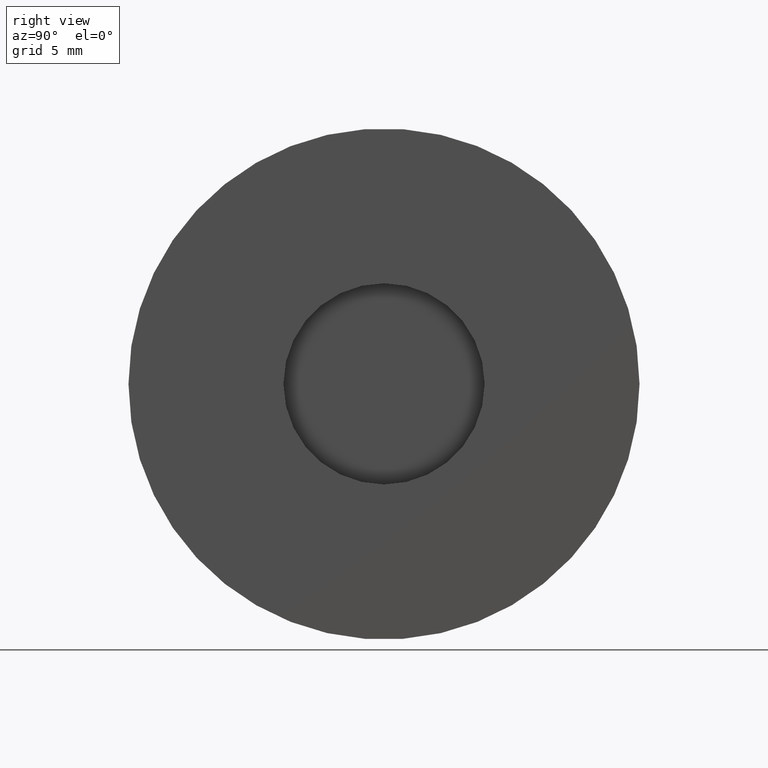
[diagram: clean part render]
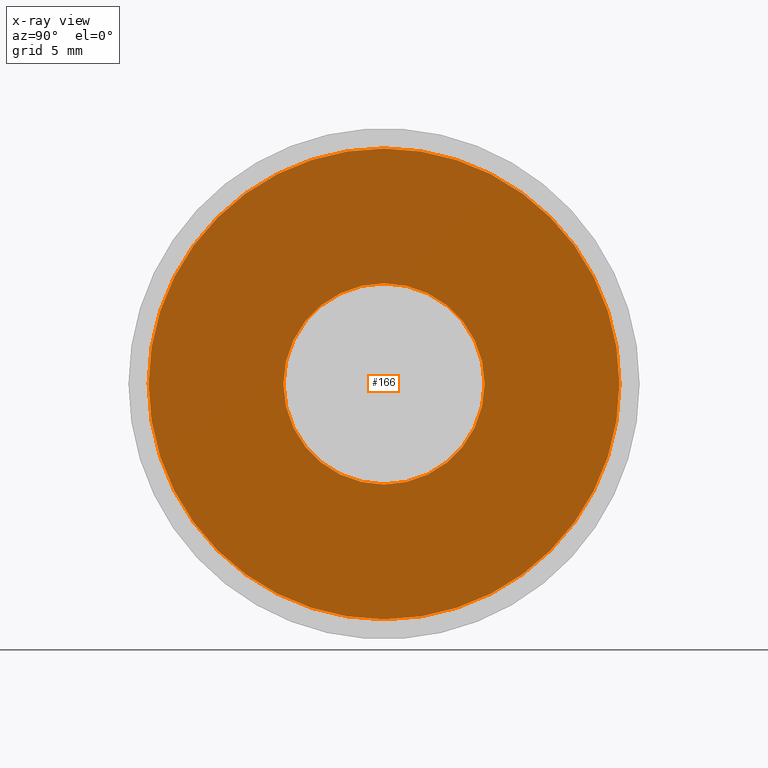
[diagram: x-ray — body ghosted, one internal face saturated and labeled with its STEP entity id]
A machine part, right view, then the same camera in x-ray: the body is ghosted and one INTERNAL B-rep face — a face not visible from any outside direction — is saturated and labeled: STEP entity #166.
In plain terms, the highlighted planar face has unit normal (1, 0, 0).
Its self-contained STEP definition (entity closure, byte-faithful):
#9 = EDGE_CURVE ( 'NONE', #274, #291, #112, .T. ) ;
#21 = EDGE_CURVE ( 'NONE', #326, #593, #375, .T. ) ;
#26 = CIRCLE ( 'NONE', #343, 5.000000000000000000 ) ;
#33 = DIRECTION ( 'NONE',  ( 1.000000000000000000, 0.000000000000000000, 0.000000000000000000 ) ) ;
#63 = AXIS2_PLACEMENT_3D ( 'NONE', #236, #33, #145 ) ;
#69 = DIRECTION ( 'NONE',  ( 1.000000000000000000, 0.000000000000000000, 0.000000000000000000 ) ) ;
#79 = AXIS2_PLACEMENT_3D ( 'NONE', #446, #563, #568 ) ;
#112 = CIRCLE ( 'NONE', #193, 11.70000000000000107 ) ;
#129 = DIRECTION ( 'NONE',  ( 1.000000000000000000, 0.000000000000000000, 0.000000000000000000 ) ) ;
#135 = ORIENTED_EDGE ( 'NONE', *, *, #21, .F. ) ;
#142 = CIRCLE ( 'NONE', #79, 11.70000000000000107 ) ;
#145 = DIRECTION ( 'NONE',  ( 0.000000000000000000, 1.000000000000000000, 0.000000000000000000 ) ) ;
#151 = ORIENTED_EDGE ( 'NONE', *, *, #9, .T. ) ;
#166 = ADVANCED_FACE ( 'NONE', ( #190, #660 ), #615, .T. ) ;
#190 = FACE_BOUND ( 'NONE', #585, .T. ) ;
#193 = AXIS2_PLACEMENT_3D ( 'NONE', #449, #129, #440 ) ;
#205 = CARTESIAN_POINT ( 'NONE',  ( -1.449999999999999956, 0.000000000000000000, 0.000000000000000000 ) ) ;
#236 = CARTESIAN_POINT ( 'NONE',  ( -1.449999999999999956, 5.000000000000000000, 0.000000000000000000 ) ) ;
#249 = DIRECTION ( 'NONE',  ( 0.000000000000000000, 0.000000000000000000, -1.000000000000000000 ) ) ;
#271 = DIRECTION ( 'NONE',  ( 0.000000000000000000, 0.000000000000000000, -1.000000000000000000 ) ) ;
#274 = VERTEX_POINT ( 'NONE', #306 ) ;
#291 = VERTEX_POINT ( 'NONE', #507 ) ;
#306 = CARTESIAN_POINT ( 'NONE',  ( -1.449999999999999956, 11.70000000000000107, 0.000000000000000000 ) ) ;
#324 = EDGE_CURVE ( 'NONE', #593, #326, #26, .T. ) ;
#326 = VERTEX_POINT ( 'NONE', #671 ) ;
#337 = ORIENTED_EDGE ( 'NONE', *, *, #324, .F. ) ;
#343 = AXIS2_PLACEMENT_3D ( 'NONE', #205, #360, #249 ) ;
#360 = DIRECTION ( 'NONE',  ( 1.000000000000000000, 0.000000000000000000, 0.000000000000000000 ) ) ;
#375 = CIRCLE ( 'NONE', #576, 5.000000000000000000 ) ;
#382 = CARTESIAN_POINT ( 'NONE',  ( -1.449999999999999956, 0.000000000000000000, 0.000000000000000000 ) ) ;
#440 = DIRECTION ( 'NONE',  ( 0.000000000000000000, 0.000000000000000000, -1.000000000000000000 ) ) ;
#446 = CARTESIAN_POINT ( 'NONE',  ( -1.449999999999999956, 0.000000000000000000, 0.000000000000000000 ) ) ;
#449 = CARTESIAN_POINT ( 'NONE',  ( -1.449999999999999956, 0.000000000000000000, 0.000000000000000000 ) ) ;
#491 = EDGE_CURVE ( 'NONE', #291, #274, #142, .T. ) ;
#507 = CARTESIAN_POINT ( 'NONE',  ( -1.449999999999999956, -11.70000000000000107, 1.432836755002401904E-15 ) ) ;
#518 = CARTESIAN_POINT ( 'NONE',  ( -1.449999999999999956, 5.000000000000000000, 0.000000000000000000 ) ) ;
#532 = ORIENTED_EDGE ( 'NONE', *, *, #491, .T. ) ;
#563 = DIRECTION ( 'NONE',  ( 1.000000000000000000, 0.000000000000000000, 0.000000000000000000 ) ) ;
#568 = DIRECTION ( 'NONE',  ( 0.000000000000000000, 0.000000000000000000, -1.000000000000000000 ) ) ;
#576 = AXIS2_PLACEMENT_3D ( 'NONE', #382, #69, #271 ) ;
#585 = EDGE_LOOP ( 'NONE', ( #337, #135 ) ) ;
#593 = VERTEX_POINT ( 'NONE', #518 ) ;
#615 = PLANE ( 'NONE',  #63 ) ;
#623 = EDGE_LOOP ( 'NONE', ( #151, #532 ) ) ;
#660 = FACE_OUTER_BOUND ( 'NONE', #623, .T. ) ;
#671 = CARTESIAN_POINT ( 'NONE',  ( -1.449999999999999956, -5.000000000000000000, 6.123233995736771213E-16 ) ) ;